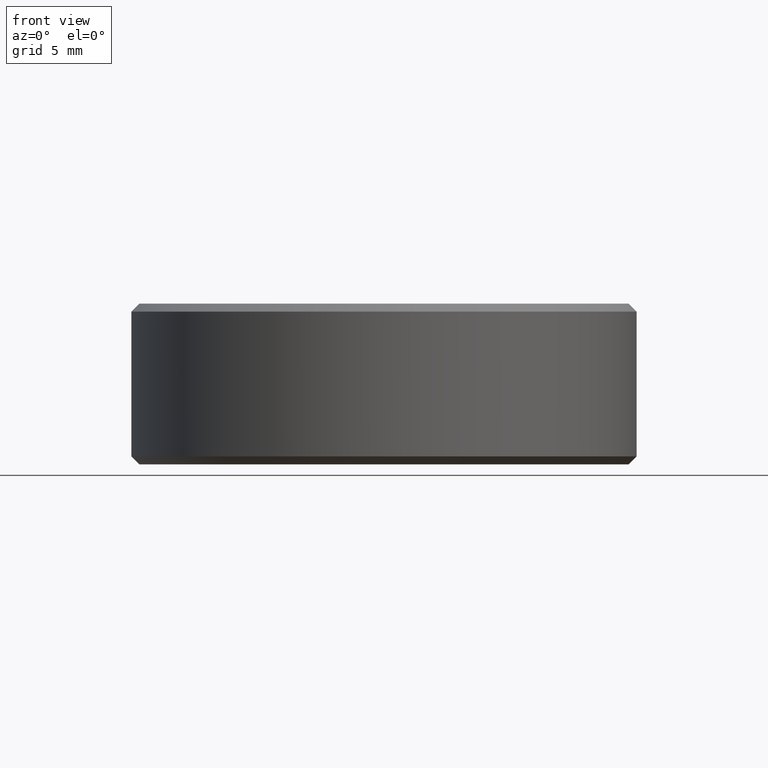
[diagram: clean part render]
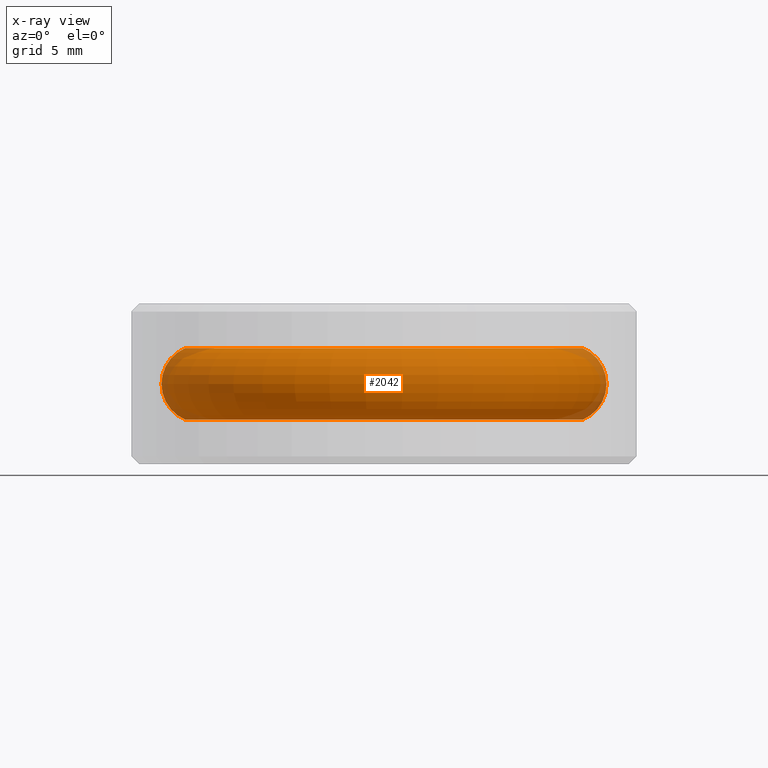
[diagram: x-ray — body ghosted, one internal face saturated and labeled with its STEP entity id]
A machine part, front view, then the same camera in x-ray: the body is ghosted and one INTERNAL B-rep face — a face not visible from any outside direction — is saturated and labeled: STEP entity #2042.
In plain terms, the highlighted toroidal blend (fillet) surface has major radius 12.7 mm and minor (blend) radius 2.6821 mm.
Its self-contained STEP definition (entity closure, byte-faithful):
#58 = DIRECTION ( 'NONE',  ( 0.0000000000000000000, 0.0000000000000000000, -1.000000000000000000 ) ) ;
#76 = CARTESIAN_POINT ( 'NONE',  ( 0.5412087912087910624, 0.0000000000000000000, -0.09722222222222225152 ) ) ;
#186 = CIRCLE ( 'NONE', #1539, 0.1055950991605050654 ) ;
#263 = VERTEX_POINT ( 'NONE', #76 ) ;
#293 = AXIS2_PLACEMENT_3D ( 'NONE', #1621, #1607, #1429 ) ;
#378 = AXIS2_PLACEMENT_3D ( 'NONE', #623, #987, #802 ) ;
#405 = EDGE_CURVE ( 'NONE', #1078, #1143, #690, .T. ) ;
#462 = ORIENTED_EDGE ( 'NONE', *, *, #683, .T. ) ;
#623 = CARTESIAN_POINT ( 'NONE',  ( 0.0000000000000000000, 0.0000000000000000000, -0.09722222222222225152 ) ) ;
#683 = EDGE_CURVE ( 'NONE', #1143, #2327, #939, .T. ) ;
#690 = CIRCLE ( 'NONE', #2040, 0.1055950991605050931 ) ;
#774 = CARTESIAN_POINT ( 'NONE',  ( -0.5412087912087910624, 6.627896138242541838E-17, -0.09722222222222225152 ) ) ;
#788 = EDGE_LOOP ( 'NONE', ( #1750, #2237, #462, #1563 ) ) ;
#802 = DIRECTION ( 'NONE',  ( 1.000000000000000000, 0.0000000000000000000, 0.0000000000000000000 ) ) ;
#939 = CIRCLE ( 'NONE', #2380, 0.5412087912087910624 ) ;
#987 = DIRECTION ( 'NONE',  ( -0.0000000000000000000, -0.0000000000000000000, 1.000000000000000000 ) ) ;
#1016 = DIRECTION ( 'NONE',  ( 0.0000000000000000000, -1.000000000000000000, 0.0000000000000000000 ) ) ;
#1031 = DIRECTION ( 'NONE',  ( -1.000000000000000000, 1.224646799147352961E-16, 0.0000000000000000000 ) ) ;
#1033 = EDGE_CURVE ( 'NONE', #263, #2327, #186, .T. ) ;
#1078 = VERTEX_POINT ( 'NONE', #774 ) ;
#1131 = EDGE_CURVE ( 'NONE', #1078, #263, #1469, .T. ) ;
#1143 = VERTEX_POINT ( 'NONE', #1564 ) ;
#1223 = TOROIDAL_SURFACE ( 'NONE', #293, 0.5000000000000000000, 0.1055950991605050654 ) ;
#1360 = CARTESIAN_POINT ( 'NONE',  ( 0.5000000000000000000, 0.0000000000000000000, -4.592425496802574219E-17 ) ) ;
#1412 = CARTESIAN_POINT ( 'NONE',  ( -0.5000000000000000000, 6.123233995736766036E-17, -4.592425496802574219E-17 ) ) ;
#1429 = DIRECTION ( 'NONE',  ( 1.000000000000000000, 0.0000000000000000000, 0.0000000000000000000 ) ) ;
#1469 = CIRCLE ( 'NONE', #378, 0.5412087912087910624 ) ;
#1539 = AXIS2_PLACEMENT_3D ( 'NONE', #1360, #1016, #58 ) ;
#1553 = DIRECTION ( 'NONE',  ( -0.0000000000000000000, -0.0000000000000000000, 1.000000000000000000 ) ) ;
#1563 = ORIENTED_EDGE ( 'NONE', *, *, #1033, .F. ) ;
#1564 = CARTESIAN_POINT ( 'NONE',  ( -0.5412087912087910624, 6.627896138242541838E-17, 0.09722222222222216825 ) ) ;
#1591 = CARTESIAN_POINT ( 'NONE',  ( 0.0000000000000000000, 0.0000000000000000000, 0.09722222222222216825 ) ) ;
#1607 = DIRECTION ( 'NONE',  ( -0.0000000000000000000, -0.0000000000000000000, 1.000000000000000000 ) ) ;
#1621 = CARTESIAN_POINT ( 'NONE',  ( 0.0000000000000000000, 0.0000000000000000000, -4.592425496802574219E-17 ) ) ;
#1750 = ORIENTED_EDGE ( 'NONE', *, *, #1131, .F. ) ;
#1788 = FACE_OUTER_BOUND ( 'NONE', #788, .T. ) ;
#2015 = CARTESIAN_POINT ( 'NONE',  ( 0.5412087912087910624, 0.0000000000000000000, 0.09722222222222216825 ) ) ;
#2040 = AXIS2_PLACEMENT_3D ( 'NONE', #1412, #2324, #1031 ) ;
#2042 = ADVANCED_FACE ( 'NONE', ( #1788 ), #1223, .F. ) ;
#2120 = DIRECTION ( 'NONE',  ( 1.000000000000000000, 0.0000000000000000000, 0.0000000000000000000 ) ) ;
#2237 = ORIENTED_EDGE ( 'NONE', *, *, #405, .T. ) ;
#2324 = DIRECTION ( 'NONE',  ( 1.224646799147353207E-16, 1.000000000000000000, 0.0000000000000000000 ) ) ;
#2327 = VERTEX_POINT ( 'NONE', #2015 ) ;
#2380 = AXIS2_PLACEMENT_3D ( 'NONE', #1591, #1553, #2120 ) ;